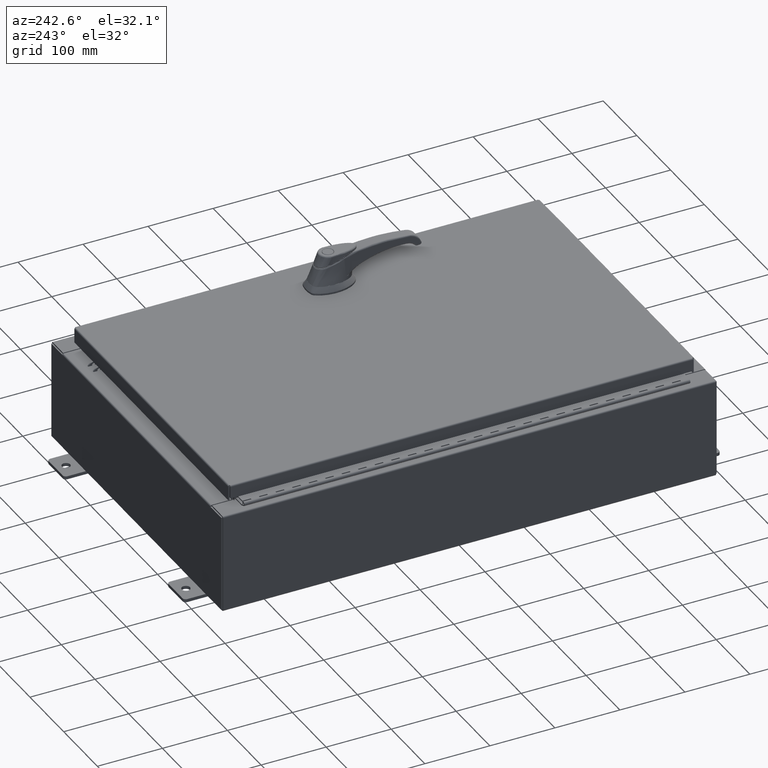
[diagram: clean part render]
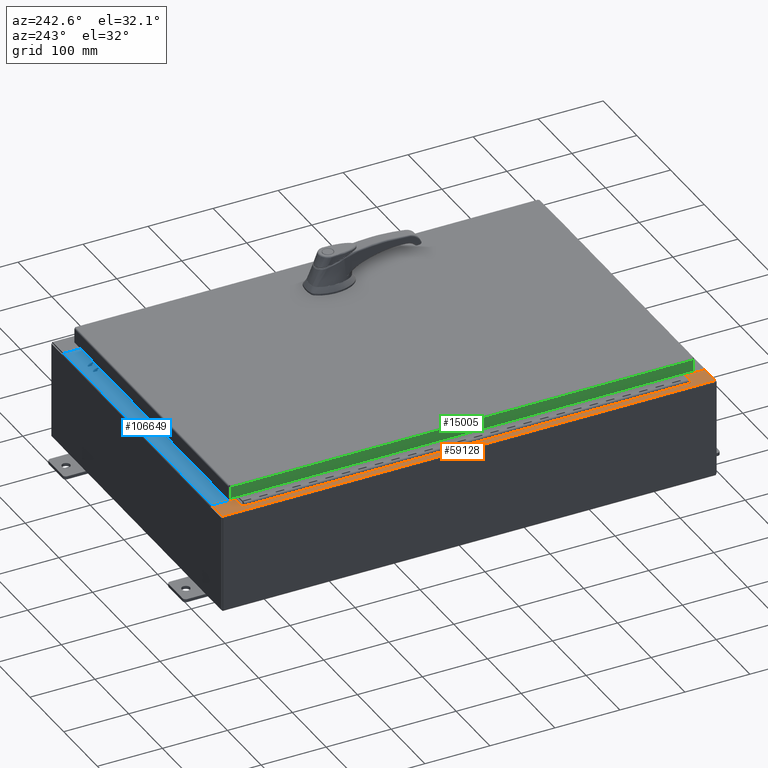
[diagram: same view with three faces highlighted in distinct colors, each labeled with its STEP entity id]
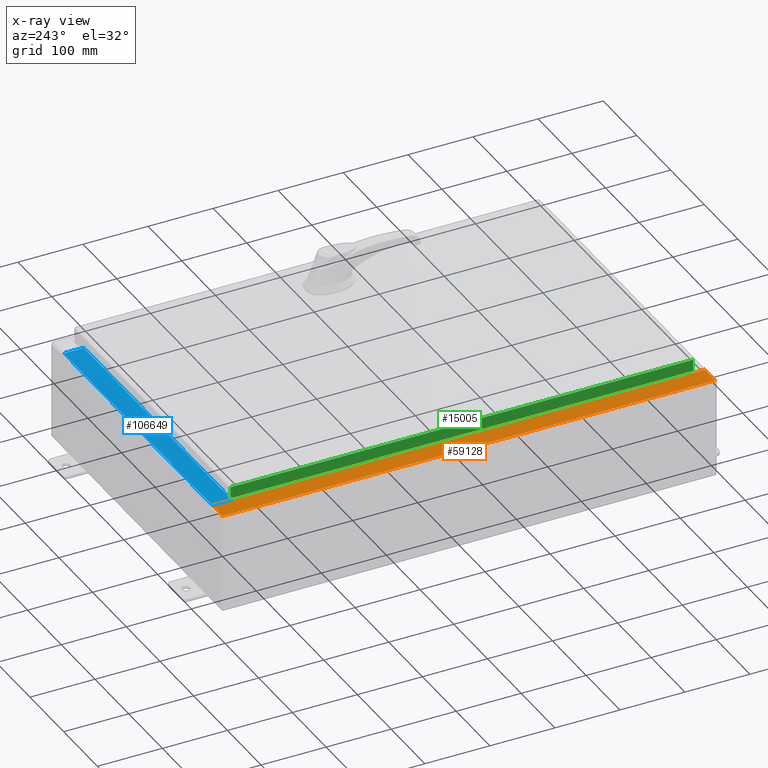
[diagram: x-ray of the same camera — body ghosted, the three highlighted faces saturated]
A machine part, auxiliary view with three faces highlighted in distinct colors.
The next image is the same camera in x-ray (body ghosted, the three faces saturated) — at least one of them is partly hidden behind the body in this view.
Their STEP definitions:

[orange] entity #59128 — the highlighted planar face has unit normal (0, -0, -1).
#71 = CARTESIAN_POINT ( 'NONE',  ( -8.699700000000019500, 14.92530000000000500, 5.925300000000007100 ) ) ;
#659 = VECTOR ( 'NONE', #32987, 39.37007874015748100 ) ;
#2440 = VERTEX_POINT ( 'NONE', #107008 ) ;
#2632 = LINE ( 'NONE', #26885, #24025 ) ;
#5021 = CARTESIAN_POINT ( 'NONE',  ( -8.699700000000019500, 2.169071163307790200E-016, 5.925300000000008000 ) ) ;
#5031 = CARTESIAN_POINT ( 'NONE',  ( -8.750050000000021200, -13.61242499999999500, 5.925300000000008000 ) ) ;
#5538 = CARTESIAN_POINT ( 'NONE',  ( -8.699700000000019500, 2.169071163307790200E-016, 5.925300000000008000 ) ) ;
#6033 = CARTESIAN_POINT ( 'NONE',  ( -8.750050000000021200, 13.59375000000000200, 5.925300000000008000 ) ) ;
#7289 = EDGE_CURVE ( 'NONE', #17068, #53066, #114700, .T. ) ;
#8365 = AXIS2_PLACEMENT_3D ( 'NONE', #5031, #68965, #14226 ) ;
#8506 = VECTOR ( 'NONE', #8766, 39.37007874015748100 ) ;
#8766 = DIRECTION ( 'NONE',  ( 1.000000000000000000, 4.379057701015054300E-047, 7.132762385546378400E-015 ) ) ;
#8933 = DIRECTION ( 'NONE',  ( 4.379057701015054300E-047, 1.000000000000000000, -3.660694248911932200E-017 ) ) ;
#9861 = CARTESIAN_POINT ( 'NONE',  ( -9.912300000000019700, 14.92530000000000500, 5.925299999999999100 ) ) ;
#10752 = CARTESIAN_POINT ( 'NONE',  ( -8.699700000000019500, -13.63109999999999600, 5.925300000000008000 ) ) ;
#11488 = EDGE_CURVE ( 'NONE', #17068, #18848, #2632, .T. ) ;
#13102 = DIRECTION ( 'NONE',  ( -1.000000000000000000, -4.379057701015054300E-047, -7.132762385546378400E-015 ) ) ;
#14226 = DIRECTION ( 'NONE',  ( 1.000000000000000000, 0.0000000000000000000, 0.0000000000000000000 ) ) ;
#14430 = VECTOR ( 'NONE', #8933, 39.37007874015748100 ) ;
#17068 = VERTEX_POINT ( 'NONE', #32707 ) ;
#17312 = EDGE_CURVE ( 'NONE', #2440, #58246, #45843, .T. ) ;
#17709 = ORIENTED_EDGE ( 'NONE', *, *, #25919, .T. ) ;
#18279 = ORIENTED_EDGE ( 'NONE', *, *, #30175, .F. ) ;
#18848 = VERTEX_POINT ( 'NONE', #92646 ) ;
#18943 = ORIENTED_EDGE ( 'NONE', *, *, #68759, .T. ) ;
#21239 = EDGE_CURVE ( 'NONE', #18848, #115012, #84040, .T. ) ;
#21828 = CARTESIAN_POINT ( 'NONE',  ( -4.252457061909003200E-014, 14.92530000000000500, 5.925300000000069300 ) ) ;
#22718 = VERTEX_POINT ( 'NONE', #52180 ) ;
#24025 = VECTOR ( 'NONE', #54800, 39.37007874015748100 ) ;
#25919 = EDGE_CURVE ( 'NONE', #53066, #22718, #102719, .T. ) ;
#26635 = CARTESIAN_POINT ( 'NONE',  ( -4.252457061909004500E-014, -14.92529999999999600, 5.925300000000070200 ) ) ;
#26885 = CARTESIAN_POINT ( 'NONE',  ( -8.699700000000019500, 13.63110000000000400, 5.925300000000008000 ) ) ;
#29486 = LINE ( 'NONE', #77765, #32381 ) ;
#30175 = EDGE_CURVE ( 'NONE', #49648, #43568, #36831, .T. ) ;
#32381 = VECTOR ( 'NONE', #50501, 39.37007874015748100 ) ;
#32707 = CARTESIAN_POINT ( 'NONE',  ( -8.699700000000019500, 13.63110000000000400, 5.925300000000008000 ) ) ;
#32738 = LINE ( 'NONE', #26635, #8506 ) ;
#32987 = DIRECTION ( 'NONE',  ( 4.379057701015054300E-047, 1.000000000000000000, -3.660694248911932200E-017 ) ) ;
#34559 = CARTESIAN_POINT ( 'NONE',  ( -8.750050000000021200, 13.61242500000000200, 5.925300000000008000 ) ) ;
#35986 = ORIENTED_EDGE ( 'NONE', *, *, #62893, .T. ) ;
#36831 = CIRCLE ( 'NONE', #8365, 0.01867499999999949400 ) ;
#39177 = VERTEX_POINT ( 'NONE', #41185 ) ;
#41185 = CARTESIAN_POINT ( 'NONE',  ( -9.912300000000017900, -14.92529999999999600, 5.925299999999999100 ) ) ;
#43568 = VERTEX_POINT ( 'NONE', #46077 ) ;
#43777 = DIRECTION ( 'NONE',  ( 1.000000000000000000, 0.0000000000000000000, 0.0000000000000000000 ) ) ;
#43968 = CARTESIAN_POINT ( 'NONE',  ( -8.699700000000019500, -14.92529999999999600, 5.925300000000008000 ) ) ;
#45843 = LINE ( 'NONE', #101075, #91703 ) ;
#46077 = CARTESIAN_POINT ( 'NONE',  ( -8.750050000000021200, -13.63109999999999500, 5.925300000000008000 ) ) ;
#46530 = LINE ( 'NONE', #6033, #111065 ) ;
#47649 = ORIENTED_EDGE ( 'NONE', *, *, #21239, .F. ) ;
#49236 = LINE ( 'NONE', #5538, #659 ) ;
#49648 = VERTEX_POINT ( 'NONE', #97455 ) ;
#50501 = DIRECTION ( 'NONE',  ( -1.000000000000000000, 0.0000000000000000000, 0.0000000000000000000 ) ) ;
#52180 = CARTESIAN_POINT ( 'NONE',  ( -9.912300000000017900, 14.92530000000000500, 5.925299999999999100 ) ) ;
#52587 = ORIENTED_EDGE ( 'NONE', *, *, #7289, .T. ) ;
#53066 = VERTEX_POINT ( 'NONE', #71 ) ;
#53431 = EDGE_CURVE ( 'NONE', #115012, #2440, #46530, .T. ) ;
#54800 = DIRECTION ( 'NONE',  ( -1.000000000000000000, -4.340572780399910900E-014, 0.0000000000000000000 ) ) ;
#58246 = VERTEX_POINT ( 'NONE', #77617 ) ;
#59128 = ADVANCED_FACE ( 'NONE', ( #74850 ), #89380, .F. ) ;
#62117 = DIRECTION ( 'NONE',  ( -1.000000000000000000, 0.0000000000000000000, -7.132762385546378400E-015 ) ) ;
#62893 = EDGE_CURVE ( 'NONE', #74015, #84305, #49236, .T. ) ;
#68759 = EDGE_CURVE ( 'NONE', #39177, #74015, #32738, .T. ) ;
#68965 = DIRECTION ( 'NONE',  ( -7.132762385546378400E-015, 3.660694248911932200E-017, 1.000000000000000000 ) ) ;
#71196 = VECTOR ( 'NONE', #81544, 39.37007874015748100 ) ;
#71213 = EDGE_CURVE ( 'NONE', #58246, #49648, #29486, .T. ) ;
#72340 = CARTESIAN_POINT ( 'NONE',  ( -8.750050000000021200, -13.63109999999999500, 5.925300000000008000 ) ) ;
#73169 = LINE ( 'NONE', #9861, #97599 ) ;
#74015 = VERTEX_POINT ( 'NONE', #43968 ) ;
#74058 = LINE ( 'NONE', #72340, #71196 ) ;
#74850 = FACE_OUTER_BOUND ( 'NONE', #98002, .T. ) ;
#76015 = CARTESIAN_POINT ( 'NONE',  ( -8.750050000000021200, 13.59375000000000200, 5.925300000000008000 ) ) ;
#77617 = CARTESIAN_POINT ( 'NONE',  ( -8.712700000000021200, -13.59374999999999500, 5.925300000000008000 ) ) ;
#77765 = CARTESIAN_POINT ( 'NONE',  ( -8.712700000000021200, -13.59374999999999500, 5.925300000000008000 ) ) ;
#79022 = EDGE_CURVE ( 'NONE', #39177, #22718, #73169, .T. ) ;
#80186 = CARTESIAN_POINT ( 'NONE',  ( -4.252457061909003800E-014, 2.169071163307812900E-016, 5.925300000000070200 ) ) ;
#81054 = ORIENTED_EDGE ( 'NONE', *, *, #17312, .F. ) ;
#81544 = DIRECTION ( 'NONE',  ( 1.000000000000000000, 0.0000000000000000000, 0.0000000000000000000 ) ) ;
#83003 = DIRECTION ( 'NONE',  ( -7.321388497823866900E-017, 1.000000000000000000, -3.660694248911984600E-017 ) ) ;
#84040 = CIRCLE ( 'NONE', #115295, 0.01867499999999949400 ) ;
#84305 = VERTEX_POINT ( 'NONE', #10752 ) ;
#85116 = ORIENTED_EDGE ( 'NONE', *, *, #11488, .F. ) ;
#87105 = ORIENTED_EDGE ( 'NONE', *, *, #71213, .F. ) ;
#89380 = PLANE ( 'NONE',  #111961 ) ;
#89691 = ORIENTED_EDGE ( 'NONE', *, *, #102038, .F. ) ;
#91703 = VECTOR ( 'NONE', #100677, 39.37007874015748100 ) ;
#92646 = CARTESIAN_POINT ( 'NONE',  ( -8.750050000000021200, 13.63110000000000200, 5.925300000000007100 ) ) ;
#96164 = ORIENTED_EDGE ( 'NONE', *, *, #53431, .F. ) ;
#97455 = CARTESIAN_POINT ( 'NONE',  ( -8.750050000000021200, -13.59374999999999500, 5.925300000000008000 ) ) ;
#97599 = VECTOR ( 'NONE', #83003, 39.37007874015748100 ) ;
#98002 = EDGE_LOOP ( 'NONE', ( #85116, #52587, #17709, #111417, #18943, #35986, #89691, #18279, #87105, #81054, #96164, #47649 ) ) ;
#98686 = DIRECTION ( 'NONE',  ( -7.132762385546378400E-015, 3.660694248911932200E-017, 1.000000000000000000 ) ) ;
#100677 = DIRECTION ( 'NONE',  ( -0.0000000000000000000, -1.000000000000000000, -0.0000000000000000000 ) ) ;
#101075 = CARTESIAN_POINT ( 'NONE',  ( -8.712700000000021200, 13.59375000000000400, 5.925300000000008000 ) ) ;
#102038 = EDGE_CURVE ( 'NONE', #43568, #84305, #74058, .T. ) ;
#102719 = LINE ( 'NONE', #21828, #105610 ) ;
#105610 = VECTOR ( 'NONE', #13102, 39.37007874015748100 ) ;
#106386 = DIRECTION ( 'NONE',  ( 1.000000000000000000, 0.0000000000000000000, 0.0000000000000000000 ) ) ;
#107008 = CARTESIAN_POINT ( 'NONE',  ( -8.712700000000021200, 13.59375000000000200, 5.925300000000008000 ) ) ;
#111065 = VECTOR ( 'NONE', #106386, 39.37007874015748100 ) ;
#111417 = ORIENTED_EDGE ( 'NONE', *, *, #79022, .F. ) ;
#111961 = AXIS2_PLACEMENT_3D ( 'NONE', #80186, #117132, #62117 ) ;
#114700 = LINE ( 'NONE', #5021, #14430 ) ;
#115012 = VERTEX_POINT ( 'NONE', #76015 ) ;
#115295 = AXIS2_PLACEMENT_3D ( 'NONE', #34559, #98686, #43777 ) ;
#117132 = DIRECTION ( 'NONE',  ( 7.132762385546378400E-015, -3.660694248911932200E-017, -1.000000000000000000 ) ) ;

[blue] entity #106649 — the highlighted planar face has unit normal (0, 0, 1).
#2035 = ORIENTED_EDGE ( 'NONE', *, *, #83691, .F. ) ;
#8415 = VECTOR ( 'NONE', #55333, 39.37007874015748100 ) ;
#16900 = DIRECTION ( 'NONE',  ( -1.000000000000000000, 0.0000000000000000000, 0.0000000000000000000 ) ) ;
#21059 = LINE ( 'NONE', #107066, #112768 ) ;
#21901 = CARTESIAN_POINT ( 'NONE',  ( 0.0000000000000000000, 1.069354855923099900E-014, 3.000000000000000900 ) ) ;
#22034 = CARTESIAN_POINT ( 'NONE',  ( -8.637200000000000000, -1.287299999999999200, 3.000000000000005300 ) ) ;
#22295 = DIRECTION ( 'NONE',  ( 0.0000000000000000000, -1.000000000000000000, 3.566381192773190000E-015 ) ) ;
#25092 = CARTESIAN_POINT ( 'NONE',  ( 8.637200000000000000, -0.08769999999999965300, 3.000000000000000900 ) ) ;
#25463 = VERTEX_POINT ( 'NONE', #25092 ) ;
#26153 = EDGE_CURVE ( 'NONE', #80979, #63422, #21059, .T. ) ;
#28414 = ORIENTED_EDGE ( 'NONE', *, *, #29783, .T. ) ;
#29783 = EDGE_CURVE ( 'NONE', #25463, #63422, #56882, .T. ) ;
#35210 = CARTESIAN_POINT ( 'NONE',  ( 8.637200000000000000, -1.287299999999999900, 3.000000000000005300 ) ) ;
#38491 = CARTESIAN_POINT ( 'NONE',  ( -8.637200000000000000, -0.08770000000000000000, 3.000000000000000900 ) ) ;
#46177 = CARTESIAN_POINT ( 'NONE',  ( -2.773851121247453900E-018, -0.08770000000000000000, 3.000000000000001300 ) ) ;
#49896 = ORIENTED_EDGE ( 'NONE', *, *, #76406, .F. ) ;
#51632 = ORIENTED_EDGE ( 'NONE', *, *, #26153, .F. ) ;
#55333 = DIRECTION ( 'NONE',  ( -1.000000000000000000, 3.162886113166609200E-017, -1.128005754888089100E-031 ) ) ;
#56882 = LINE ( 'NONE', #46177, #8415 ) ;
#63422 = VERTEX_POINT ( 'NONE', #38491 ) ;
#67921 = PLANE ( 'NONE',  #88819 ) ;
#76406 = EDGE_CURVE ( 'NONE', #25463, #85765, #77590, .T. ) ;
#77132 = DIRECTION ( 'NONE',  ( 0.0000000000000000000, 3.566381192773190000E-015, 1.000000000000000000 ) ) ;
#77590 = LINE ( 'NONE', #99295, #99051 ) ;
#80979 = VERTEX_POINT ( 'NONE', #22034 ) ;
#83691 = EDGE_CURVE ( 'NONE', #85765, #80979, #116062, .T. ) ;
#83884 = EDGE_LOOP ( 'NONE', ( #51632, #2035, #49896, #28414 ) ) ;
#85765 = VERTEX_POINT ( 'NONE', #92435 ) ;
#88740 = VECTOR ( 'NONE', #16900, 39.37007874015748100 ) ;
#88819 = AXIS2_PLACEMENT_3D ( 'NONE', #21901, #77132, #22295 ) ;
#92435 = CARTESIAN_POINT ( 'NONE',  ( 8.637200000000000000, -1.287299999999999900, 3.000000000000005300 ) ) ;
#99051 = VECTOR ( 'NONE', #108539, 39.37007874015748100 ) ;
#99295 = CARTESIAN_POINT ( 'NONE',  ( 8.637200000000000000, -1.300299999999999800, 3.000000000000005300 ) ) ;
#106649 = ADVANCED_FACE ( 'NONE', ( #107857 ), #67921, .T. ) ;
#107066 = CARTESIAN_POINT ( 'NONE',  ( -8.637200000000000000, -0.07469999999999973900, 3.000000000000000900 ) ) ;
#107857 = FACE_OUTER_BOUND ( 'NONE', #83884, .T. ) ;
#108539 = DIRECTION ( 'NONE',  ( -0.0000000000000000000, -1.000000000000000000, 3.566381192773190000E-015 ) ) ;
#112768 = VECTOR ( 'NONE', #116335, 39.37007874015748100 ) ;
#116062 = LINE ( 'NONE', #35210, #88740 ) ;
#116335 = DIRECTION ( 'NONE',  ( -0.0000000000000000000, 1.000000000000000000, -3.566381192773190000E-015 ) ) ;

[green] entity #15005 — the highlighted planar face has unit normal (1, 0, -0).
#280 = ORIENTED_EDGE ( 'NONE', *, *, #75771, .F. ) ;
#2174 = FACE_OUTER_BOUND ( 'NONE', #31346, .T. ) ;
#2480 = VECTOR ( 'NONE', #62881, 39.37007874015748100 ) ;
#9927 = CARTESIAN_POINT ( 'NONE',  ( -9.077999999999999400, 14.00515786437627400, -0.7949999999999962700 ) ) ;
#10123 = ORIENTED_EDGE ( 'NONE', *, *, #85191, .F. ) ;
#10642 = VERTEX_POINT ( 'NONE', #9927 ) ;
#15005 = ADVANCED_FACE ( 'NONE', ( #2174 ), #75502, .F. ) ;
#17241 = VECTOR ( 'NONE', #43266, 39.37007874015748100 ) ;
#26697 = LINE ( 'NONE', #80930, #2480 ) ;
#26829 = ORIENTED_EDGE ( 'NONE', *, *, #98213, .F. ) ;
#29793 = LINE ( 'NONE', #106276, #99994 ) ;
#31346 = EDGE_LOOP ( 'NONE', ( #10123, #72788, #26829, #280 ) ) ;
#33450 = VERTEX_POINT ( 'NONE', #77914 ) ;
#42200 = DIRECTION ( 'NONE',  ( 3.675660434206577100E-031, -1.000000000000000000, -1.083515668565077200E-045 ) ) ;
#43266 = DIRECTION ( 'NONE',  ( -3.034122441942816500E-015, 6.982962677686265900E-015, -1.000000000000000000 ) ) ;
#47696 = EDGE_CURVE ( 'NONE', #97611, #10642, #81594, .T. ) ;
#62881 = DIRECTION ( 'NONE',  ( -4.379057701015054300E-047, 1.000000000000000000, 1.211441035930299800E-016 ) ) ;
#69689 = DIRECTION ( 'NONE',  ( -3.034122441942816500E-015, 0.0000000000000000000, -1.000000000000000000 ) ) ;
#71961 = VECTOR ( 'NONE', #115900, 39.37007874015748100 ) ;
#72788 = ORIENTED_EDGE ( 'NONE', *, *, #47696, .T. ) ;
#75502 = PLANE ( 'NONE',  #116558 ) ;
#75771 = EDGE_CURVE ( 'NONE', #33450, #101841, #99169, .T. ) ;
#77914 = CARTESIAN_POINT ( 'NONE',  ( -9.077999999999997600, -14.00515786437626400, -0.08770000000000007000 ) ) ;
#80930 = CARTESIAN_POINT ( 'NONE',  ( -9.077999999999999400, -14.09399999999999600, -0.7949999999999997100 ) ) ;
#81594 = LINE ( 'NONE', #97400, #17241 ) ;
#85191 = EDGE_CURVE ( 'NONE', #97611, #33450, #29793, .T. ) ;
#86032 = CARTESIAN_POINT ( 'NONE',  ( -9.077999999999997600, -3.336764542172729700E-030, 2.780457718396846400E-014 ) ) ;
#86411 = DIRECTION ( 'NONE',  ( 1.000000000000000000, 3.675660434206576600E-031, -3.034122441942816500E-015 ) ) ;
#97400 = CARTESIAN_POINT ( 'NONE',  ( -9.077999999999997600, 14.00515786437626900, 1.256020718460122500E-013 ) ) ;
#97611 = VERTEX_POINT ( 'NONE', #103930 ) ;
#98213 = EDGE_CURVE ( 'NONE', #101841, #10642, #26697, .T. ) ;
#99169 = LINE ( 'NONE', #106611, #71961 ) ;
#99994 = VECTOR ( 'NONE', #42200, 39.37007874015748100 ) ;
#101841 = VERTEX_POINT ( 'NONE', #106067 ) ;
#103930 = CARTESIAN_POINT ( 'NONE',  ( -9.077999999999997600, 14.00515786437626900, -0.08770000000000004200 ) ) ;
#106067 = CARTESIAN_POINT ( 'NONE',  ( -9.077999999999999400, -14.00515786437626200, -0.7949999999999996000 ) ) ;
#106276 = CARTESIAN_POINT ( 'NONE',  ( -9.077999999999997600, -14.09399999999999600, -0.08770000000000004200 ) ) ;
#106611 = CARTESIAN_POINT ( 'NONE',  ( -9.077999999999997600, -14.00515786437626500, -0.07469999999999976700 ) ) ;
#115900 = DIRECTION ( 'NONE',  ( -3.034122441942816500E-015, 6.982962677686265900E-015, -1.000000000000000000 ) ) ;
#116558 = AXIS2_PLACEMENT_3D ( 'NONE', #86032, #86411, #69689 ) ;